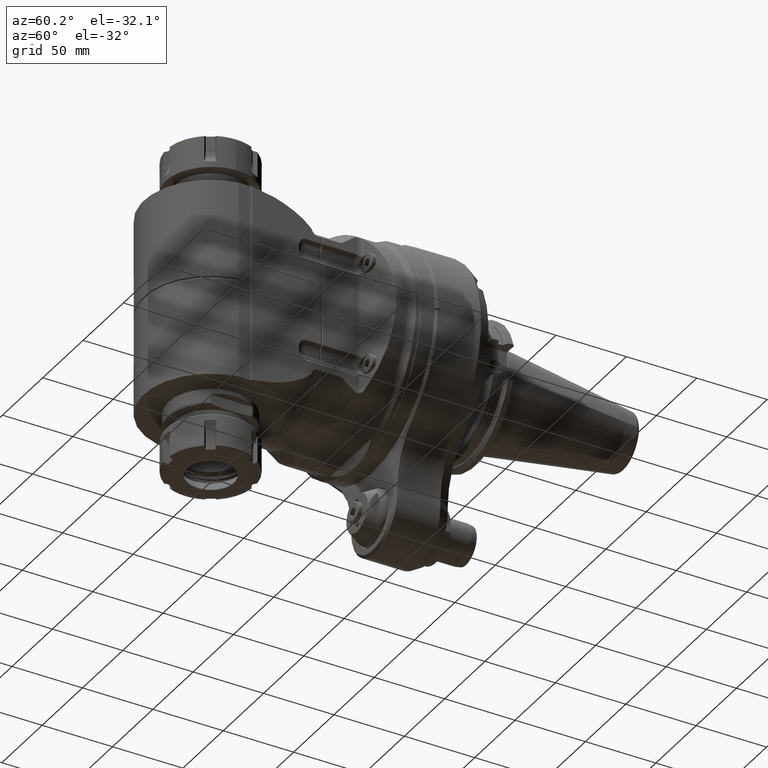
[diagram: clean part render]
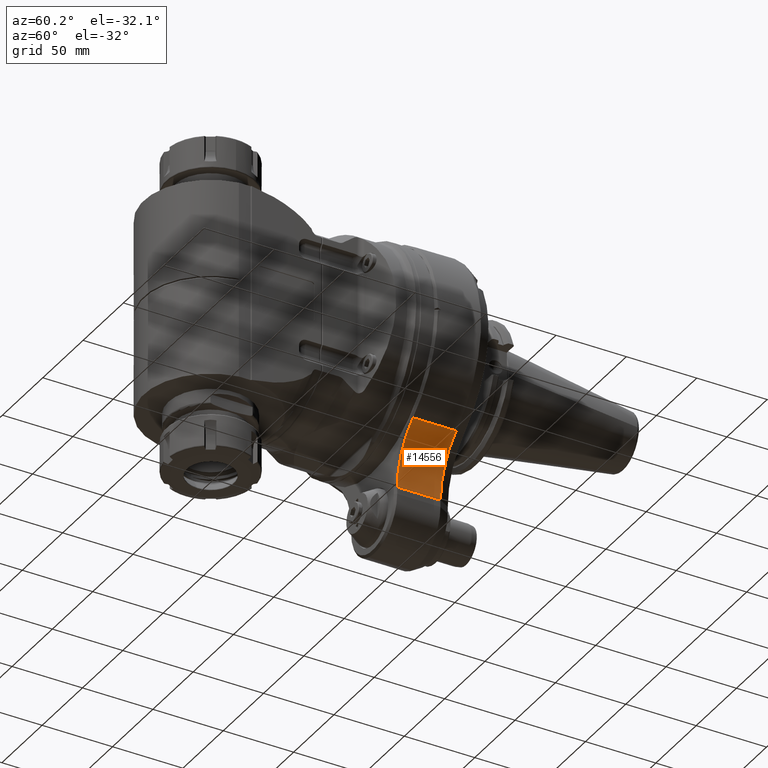
[diagram: same view with one face highlighted and labeled with its STEP entity id]
A machine part, auxiliary view. The second image highlights one B-rep face of the part: STEP entity #14556.
In plain terms, the highlighted cylindrical surface (partial cylindrical patch) has radius 50 mm, axis along (0, 1, 0).
Its self-contained STEP definition (entity closure, byte-faithful):
#1103=LINE('',#24815,#2074);
#1104=LINE('',#24818,#2075);
#2074=VECTOR('',#18960,30.70577136594);
#2075=VECTOR('',#18963,30.70577136594);
#2755=CYLINDRICAL_SURFACE('',#15926,50.);
#3417=FACE_OUTER_BOUND('',#4347,.T.);
#4347=EDGE_LOOP('',(#11441,#11442,#11443,#11444));
#5226=CIRCLE('',#15925,50.);
#5227=CIRCLE('',#15927,50.);
#6367=VERTEX_POINT('',#24806);
#6368=VERTEX_POINT('',#24810);
#6369=VERTEX_POINT('',#24814);
#6370=VERTEX_POINT('',#24816);
#8170=EDGE_CURVE('',#6367,#6368,#5226,.T.);
#8172=EDGE_CURVE('',#6367,#6369,#1103,.T.);
#8173=EDGE_CURVE('',#6370,#6369,#5227,.T.);
#8174=EDGE_CURVE('',#6368,#6370,#1104,.T.);
#11441=ORIENTED_EDGE('',*,*,#8170,.F.);
#11442=ORIENTED_EDGE('',*,*,#8172,.T.);
#11443=ORIENTED_EDGE('',*,*,#8173,.F.);
#11444=ORIENTED_EDGE('',*,*,#8174,.F.);
#14556=ADVANCED_FACE('',(#3417),#2755,.F.);
#15925=AXIS2_PLACEMENT_3D('',#24811,#18955,#18956);
#15926=AXIS2_PLACEMENT_3D('',#24813,#18958,#18959);
#15927=AXIS2_PLACEMENT_3D('',#24817,#18961,#18962);
#18955=DIRECTION('center_axis',(0.,1.,0.));
#18956=DIRECTION('ref_axis',(-1.,0.,0.));
#18958=DIRECTION('center_axis',(0.,1.,0.));
#18959=DIRECTION('ref_axis',(1.,0.,0.));
#18960=DIRECTION('',(0.,1.,1.242254867984E-8));
#18961=DIRECTION('center_axis',(0.,-1.,0.));
#18962=DIRECTION('ref_axis',(-0.607003891050614,0.,0.794698858844918));
#18963=DIRECTION('',(1.144039942068E-9,1.,8.738359245408E-10));
#24806=CARTESIAN_POINT('',(28.,-38.5,-102.1188033616));
#24810=CARTESIAN_POINT('',(47.64980544747,-38.5,-62.38386041933));
#24811=CARTESIAN_POINT('Origin',(78.,-38.5,-102.1188033616));
#24813=CARTESIAN_POINT('Origin',(78.,-6.,-102.1188033616));
#24814=CARTESIAN_POINT('',(28.,-7.79422863406,-102.1188029801));
#24815=CARTESIAN_POINT('',(28.,-38.5,-102.1188033616));
#24816=CARTESIAN_POINT('',(47.6498054820529,-7.79422863406054,-62.3838603929216));
#24817=CARTESIAN_POINT('Origin',(78.,-7.79422863406,-102.1188033616));
#24818=CARTESIAN_POINT('',(47.64980544747,-38.5,-62.38386041933));